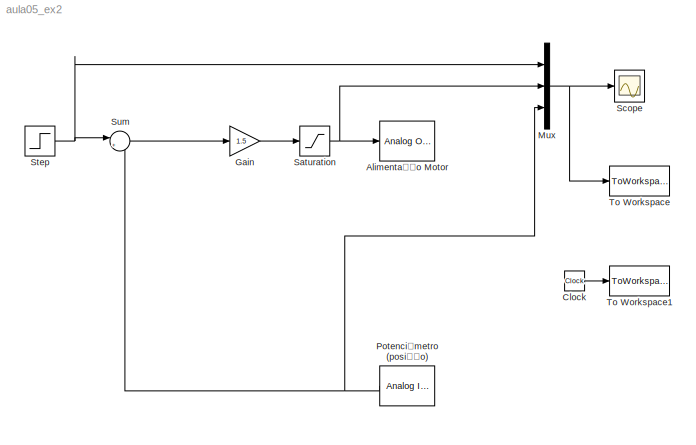
MODEL aula05_ex2
KIND model
BLOCK [Reference] Alimentação Motor  REF=rtwinlib/Analog Output
  AttributesFormatString = National Instruments\\nPCI-6221 37-pin [auto]
  Channels = 1
  DrvAddress = 4294967295
  DrvName = National_Instruments/PCI-6221_37-pin
  DrvOptions = [0 0 0 0 0]
  FinalValue = 0
  InitialValue = 0
  Ports = [1]
  RangeMode = 1
  SID = 2
  SampleTime = 1/1000
  SourceBlock = rtwinlib/Analog Output
  SourceType = RTWin Analog Output
  VoltRange = 1
BLOCK [Clock] Clock
  SID = 14
BLOCK [Gain] Gain
  Gain = 1.5
  OutDataTypeStr = Inherit: Inherit via internal rule
  ParamDataTypeStr = Inherit: Inherit via internal rule
  SID = 5
  SaturateOnIntegerOverflow = off
BLOCK [Mux] Mux
  DisplayOption = bar
  Inputs = 3
  Ports = [3, 1]
  SID = 7
BLOCK [Reference] Potenciômetro (posição)  REF=rtwinlib/Analog Input
  AttributesFormatString = National Instruments\\nPCI-6221 37-pin [auto]
  Channels = 4
  DataType = 1
  DrvAddress = 4294967295
  DrvName = National_Instruments/PCI-6221_37-pin
  DrvOptions = [0 0 0 0 0]
  Ports = [0, 1]
  RangeMode = 1
  SID = 12
  SampleTime = 1/1000
  SourceBlock = rtwinlib/Analog Input
  SourceType = RTWin Analog Input
  VoltRange = 1
BLOCK [Saturate] Saturation
  InputPortMap = u0
  LowerLimit = -5
  Ports = [1, 1]
  SID = 6
  UpperLimit = 5
BLOCK [Scope] Scope
  DataFormat = StructureWithTime
  Floating = off
  LimitDataPoints = off
  MaxDataPoints = 1010
  NumInputPorts = 1
  Ports = [1]
  SID = 8
  SampleTime = 0
BLOCK [Step] Step
  After = 2
  SID = 11
  SampleTime = 0
  Time = 2
BLOCK [Sum] Sum
  IconShape = round
  InputSameDT = off
  Inputs = |+-
  OutDataTypeStr = Inherit: Inherit via internal rule
  Ports = [2, 1]
  SID = 3
  SaturateOnIntegerOverflow = off
BLOCK [ToWorkspace] To Workspace
  MaxDataPoints = inf
  Ports = [1]
  SID = 9
  SampleTime = 1/1000
  SaveFormat = Array
  VariableName = y3
BLOCK [ToWorkspace] To Workspace1
  MaxDataPoints = inf
  Ports = [1]
  SID = 15
  SampleTime = 1/1000
  SaveFormat = Array
  VariableName = t3
LINE Clock:1 -> To Workspace1:1
LINE Gain:1 -> Saturation:1
NET Mux:1 -> Scope:1, To Workspace:1
NET Potenciômetro (posição):1 -> Mux:3, Sum:2
NET Saturation:1 -> Alimentação Motor:1, Mux:2
NET Step:1 -> Mux:1, Sum:1
LINE Sum:1 -> Gain:1
note: NET lines group one-source signal fan-out (src -> all destinations, sorted); 1:1 wires keep LINE
